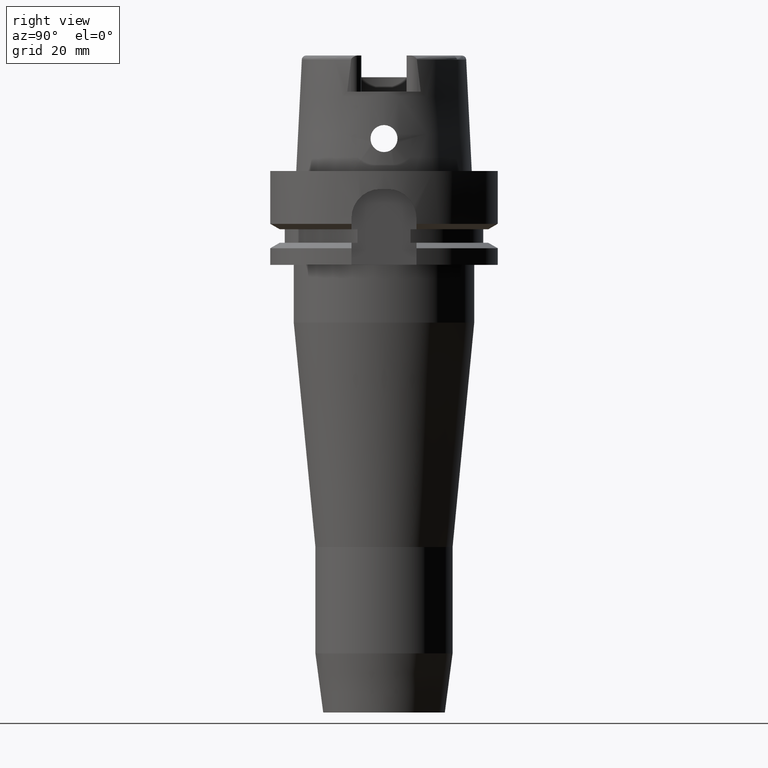
[diagram: clean part render]
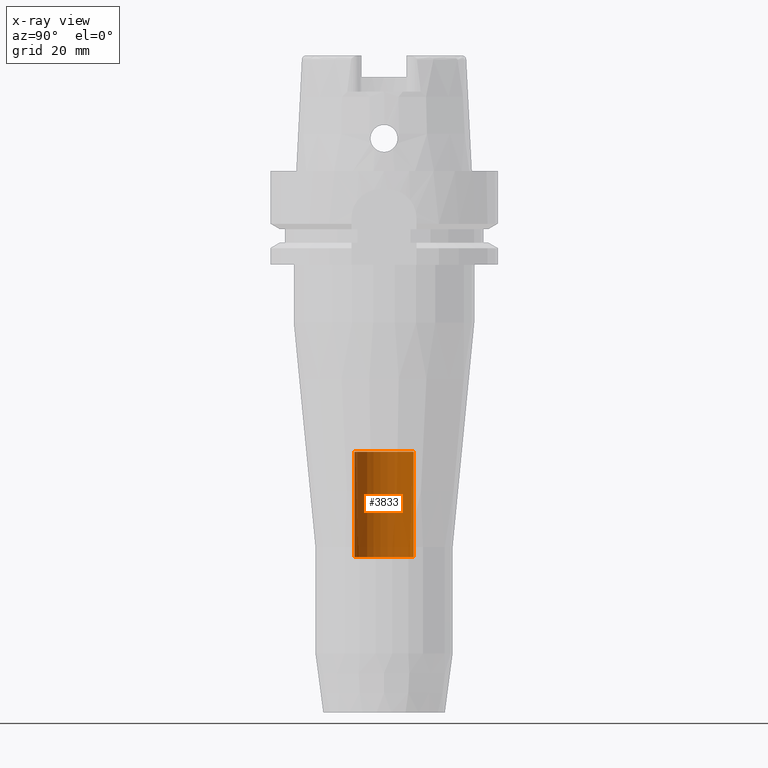
[diagram: x-ray — body ghosted, one internal face saturated and labeled with its STEP entity id]
A machine part, right view, then the same camera in x-ray: the body is ghosted and one INTERNAL B-rep face — a face not visible from any outside direction — is saturated and labeled: STEP entity #3833.
In plain terms, the highlighted cylindrical surface (edge-blend (fillet) strip) has radius 8.25 mm, axis along (0, 0, 1).
Its self-contained STEP definition (entity closure, byte-faithful):
#1759=CARTESIAN_POINT('',(0.E0,0.E0,-1.07E2));
#1760=DIRECTION('',(0.E0,0.E0,-1.E0));
#1761=DIRECTION('',(0.E0,-1.E0,0.E0));
#1762=AXIS2_PLACEMENT_3D('',#1759,#1760,#1761);
#1791=DIRECTION('',(0.E0,0.E0,1.E0));
#1792=VECTOR('',#1791,2.92E1);
#1793=CARTESIAN_POINT('',(0.E0,-8.25E0,-1.07E2));
#1794=LINE('',#1793,#1792);
#1798=DIRECTION('',(0.E0,0.E0,1.E0));
#1799=VECTOR('',#1798,2.92E1);
#1800=CARTESIAN_POINT('',(0.E0,8.25E0,-1.07E2));
#1801=LINE('',#1800,#1799);
#1813=CARTESIAN_POINT('',(0.E0,0.E0,-7.78E1));
#1814=DIRECTION('',(0.E0,0.E0,1.E0));
#1815=DIRECTION('',(0.E0,1.E0,0.E0));
#1816=AXIS2_PLACEMENT_3D('',#1813,#1814,#1815);
#2414=CARTESIAN_POINT('',(0.E0,-8.25E0,-7.78E1));
#2415=CARTESIAN_POINT('',(0.E0,8.25E0,-7.78E1));
#2416=VERTEX_POINT('',#2414);
#2417=VERTEX_POINT('',#2415);
#2418=CARTESIAN_POINT('',(0.E0,8.25E0,-1.07E2));
#2419=VERTEX_POINT('',#2418);
#2420=CARTESIAN_POINT('',(0.E0,-8.25E0,-1.07E2));
#2421=VERTEX_POINT('',#2420);
#3819=CARTESIAN_POINT('',(0.E0,0.E0,-1.591E2));
#3820=DIRECTION('',(0.E0,0.E0,1.E0));
#3821=DIRECTION('',(0.E0,1.E0,0.E0));
#3822=AXIS2_PLACEMENT_3D('',#3819,#3820,#3821);
#3823=CYLINDRICAL_SURFACE('',#3822,8.25E0);
#3825=ORIENTED_EDGE('',*,*,#3824,.F.);
#3826=ORIENTED_EDGE('',*,*,#3808,.F.);
#3828=ORIENTED_EDGE('',*,*,#3827,.T.);
#3830=ORIENTED_EDGE('',*,*,#3829,.F.);
#3831=EDGE_LOOP('',(#3825,#3826,#3828,#3830));
#3832=FACE_OUTER_BOUND('',#3831,.F.);
#1763=CIRCLE('',#1762,8.25E0);
#1817=CIRCLE('',#1816,8.25E0);
#3808=EDGE_CURVE('',#2421,#2419,#1763,.T.);
#3824=EDGE_CURVE('',#2419,#2417,#1801,.T.);
#3827=EDGE_CURVE('',#2421,#2416,#1794,.T.);
#3829=EDGE_CURVE('',#2417,#2416,#1817,.T.);
#3833=ADVANCED_FACE('',(#3832),#3823,.F.);